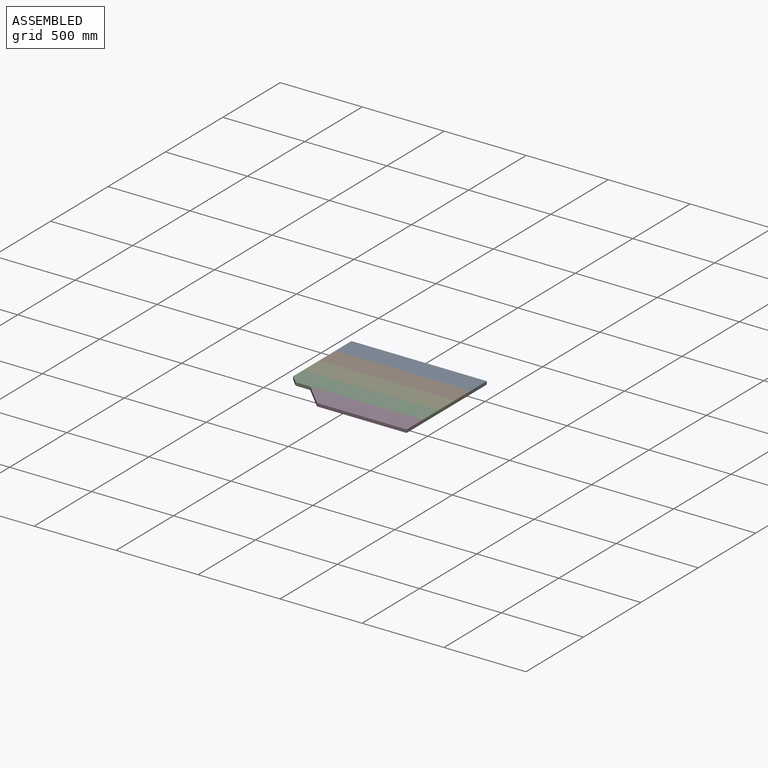
[diagram: assembled view]
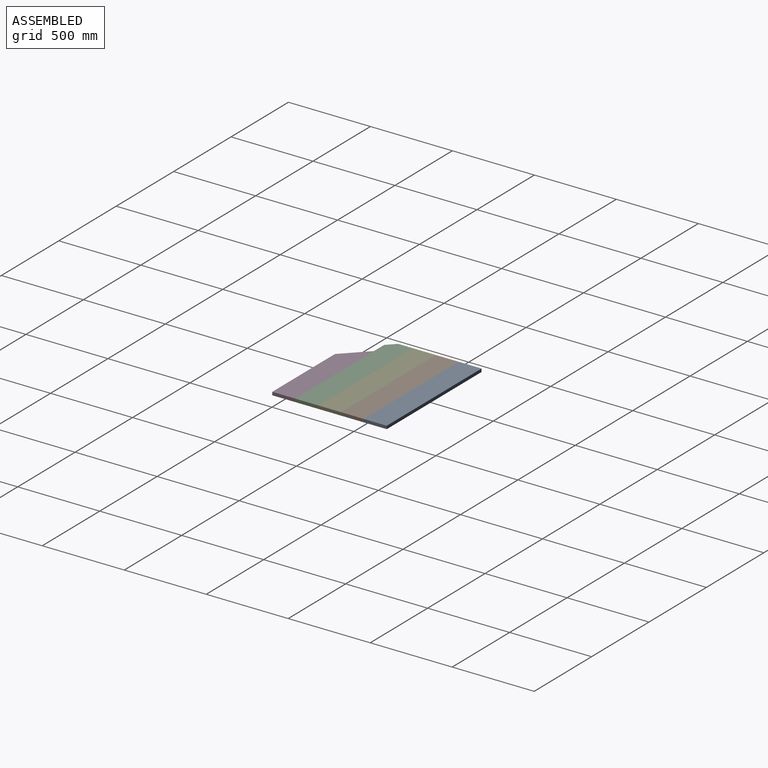
[diagram: assembled view, second angle]
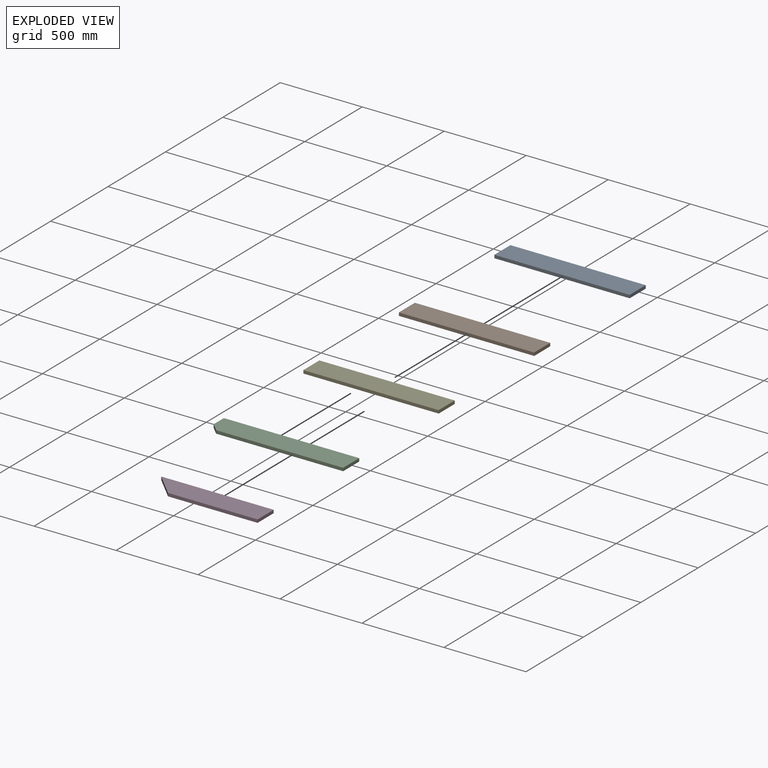
[diagram: exploded view]
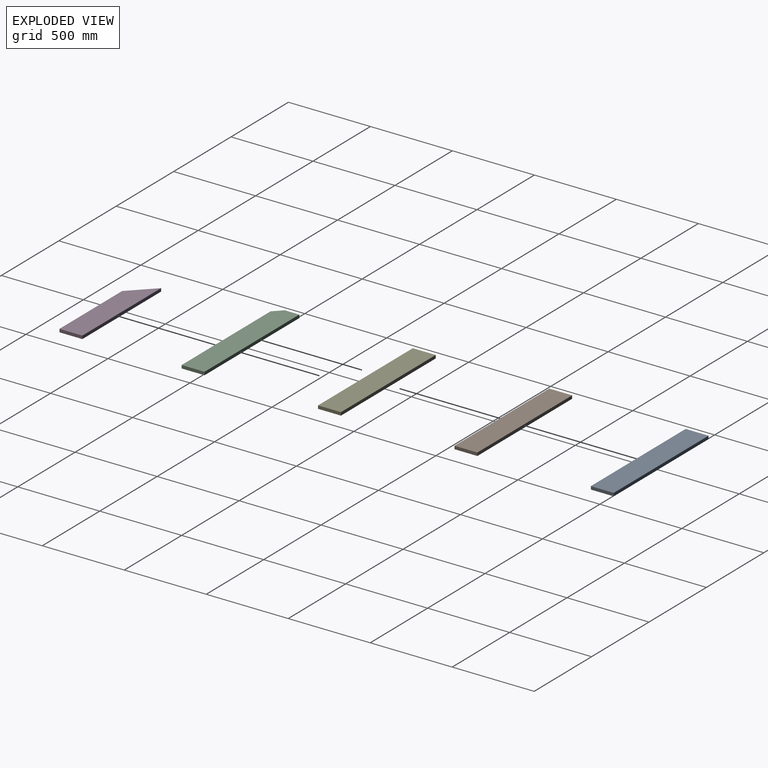
[diagram: exploded view, second angle]
ASSEMBLY  parts=5 mates=4
PART A: 6 faces, bbox 825.5x139.7x19.1 mm
  f0: plane 825.5x19.05mm, normal (0,1,0), area 15725.8mm2, adj f1,f3,f4,f5
  f1: plane 825.5x139.7mm, normal (0,0,1), area 115322.3mm2, adj f0,f2,f4,f5
  f2: plane 825.5x19.05mm, normal (0,-1,0), area 15725.8mm2, adj f1,f3,f4,f5
  f3: plane 825.5x139.7mm, normal (0,0,-1), area 115322.3mm2, adj f0,f2,f4,f5
  f4: plane 139.7x19.05mm, normal (1,0,0), area 2661.3mm2, adj f0,f1,f2,f3
  f5: plane 139.7x19.05mm, normal (-1,0,0), area 2661.3mm2, adj f0,f1,f2,f3
PART B: same geometry as A
PART C: 7 faces, bbox 825.5x139.7x19.1 mm
  f0: plane 88.9x19.05mm, normal (-1,0,0), area 1693.5mm2, adj f1,f4,f5,f6
  f1: plane 50.8x50.8mm, normal (-0.71,-0.71,0), area 1368.6mm2, adj f0,f2,f5,f6
  f2: plane 774.7x19.05mm, normal (0,-1,0), area 14758mm2, adj f1,f3,f5,f6
  f3: plane 139.7x19.05mm, normal (1,0,0), area 2661.3mm2, adj f2,f4,f5,f6
  f4: plane 825.5x19.05mm, normal (0,1,0), area 15725.8mm2, adj f0,f3,f5,f6
  f5: plane 825.5x139.7mm, normal (0,0,1), area 114032mm2, adj f0,f1,f2,f3,f4
  f6: plane 825.5x139.7mm, normal (0,0,-1), area 114032mm2, adj f0,f1,f2,f3,f4
PART D: 6 faces, bbox 685.8x139.7x19.1 mm
  f0: plane 139.7x139.7mm, normal (-0.71,-0.71,0), area 3763.6mm2, adj f1,f3,f4,f5
  f1: plane 546.1x19.05mm, normal (0,-1,0), area 10403.2mm2, adj f0,f2,f4,f5
  f2: plane 139.7x19.05mm, normal (1,0,0), area 2661.3mm2, adj f1,f3,f4,f5
  f3: plane 685.8x19.05mm, normal (0,1,0), area 13064.5mm2, adj f0,f2,f4,f5
  f4: plane 685.8x139.7mm, normal (0,0,1), area 86048.2mm2, adj f0,f1,f2,f3
  f5: plane 685.8x139.7mm, normal (0,0,-1), area 86048.2mm2, adj f0,f1,f2,f3
PART E: same geometry as A
PLACE A t=(0,69.85,9.53)mm
PLACE B t=(0,-69.85,9.52)mm
PLACE C t=(412.75,-349.25,0)mm
PLACE D t=(412.75,-419.1,0)mm
PLACE E t=(0,-209.55,9.52)mm
MATE fastened E.f0 <-> B.f2  axis (0,1,0) through (0,-139.7,0)mm
MATE fastened B.f0 <-> A.f2  axis (0,1,0) through (0,0,0)mm
MATE fastened E.f2 <-> C.f4  axis (0,-1,0) through (412.75,-279.4,9.52)mm
MATE fastened C.f2 <-> D.f3  axis (0,-1,0) through (412.75,-419.1,9.52)mm
